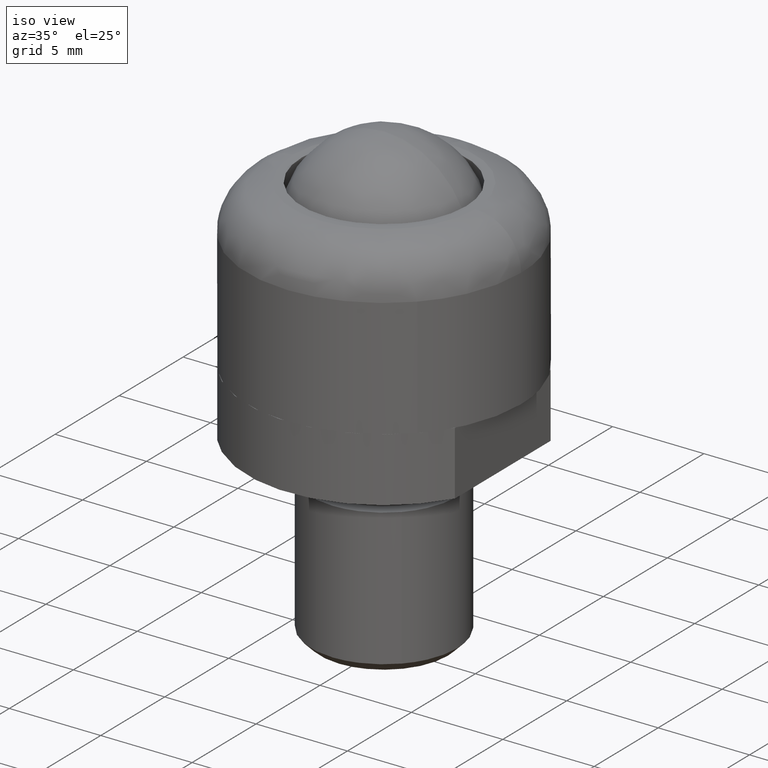
[diagram: clean part render]
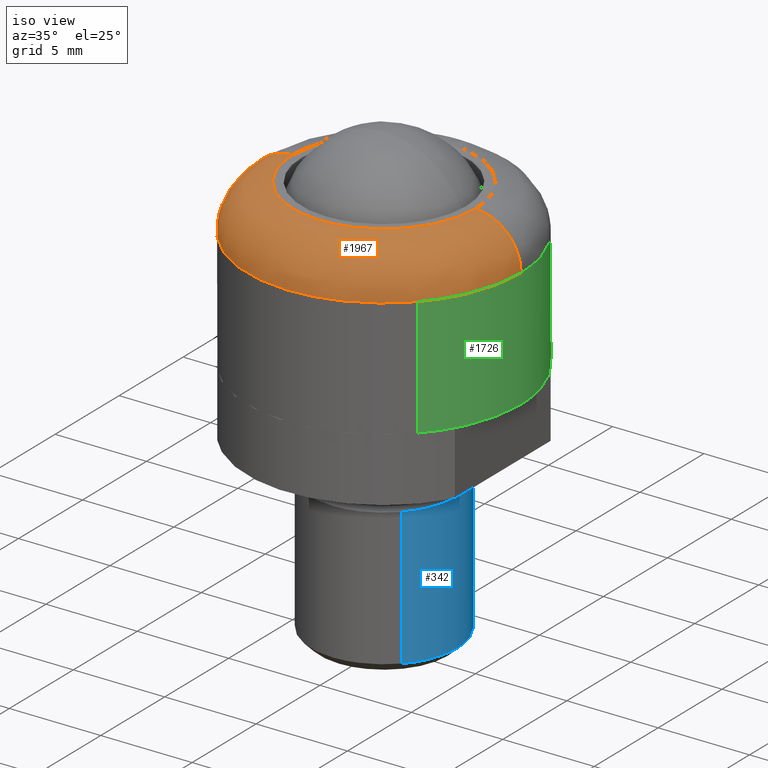
[diagram: same view with three faces highlighted in distinct colors, each labeled with its STEP entity id]
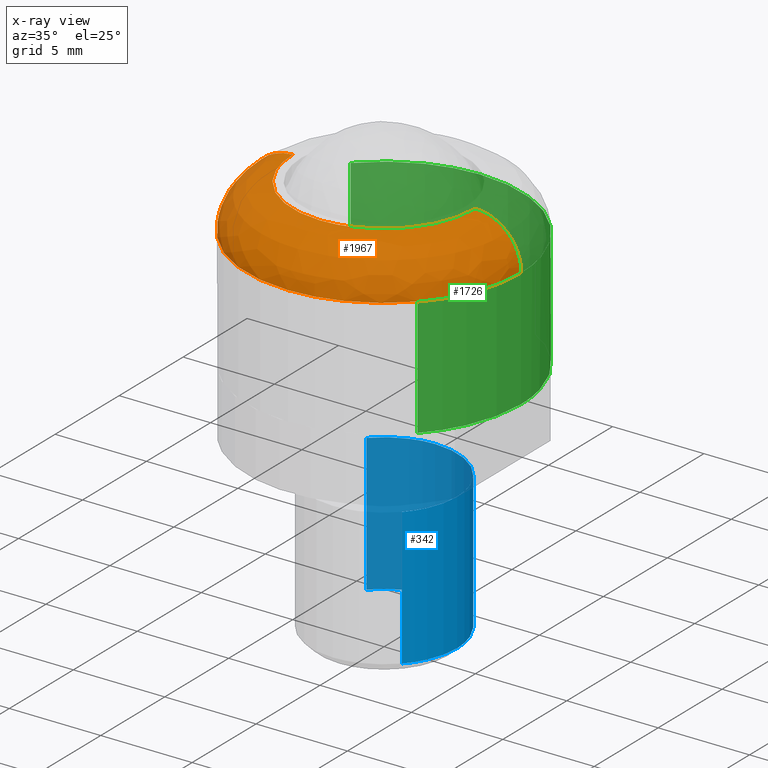
[diagram: x-ray of the same camera — body ghosted, the three highlighted faces saturated]
A machine part, iso view with three faces highlighted in distinct colors.
The next image is the same camera in x-ray (body ghosted, the three faces saturated) — at least one of them is partly hidden behind the body in this view.
Their STEP definitions:

[orange] entity #1967 — the highlighted face is a freeform B-spline surface patch.
#1683=CARTESIAN_POINT('',(7.499999999999998,4.377505E-016,6.500000000022540));
#1684=VERTEX_POINT('',#1683);
#1703=CARTESIAN_POINT('',(5.440307722741466,-5.162659260906372,6.500000000022540));
#1704=VERTEX_POINT('',#1703);
#1705=CARTESIAN_POINT('',(7.499999999999998,4.377505E-016,6.500000000022540));
#1706=CARTESIAN_POINT('',(7.500004978192504,-0.296569295775707,6.500000000022548));
#1707=CARTESIAN_POINT('',(7.461264146130633,-0.949024412818240,6.500000000022538));
#1708=CARTESIAN_POINT('',(7.290171463277423,-1.839566882293058,6.500000000022550));
#1709=CARTESIAN_POINT('',(6.989934156635150,-2.772367460848641,6.500000000022515));
#1710=CARTESIAN_POINT('',(6.644593649050092,-3.513680738812940,6.500000000022582));
#1711=CARTESIAN_POINT('',(6.126048981543740,-4.361999581352154,6.500000000022458));
#1712=CARTESIAN_POINT('',(5.736349160913113,-4.850754676377436,6.500000000022683));
#1713=CARTESIAN_POINT('',(5.440307722741466,-5.162659260906372,6.500000000022540));
#1714=B_SPLINE_CURVE_WITH_KNOTS('',3,(#1705,#1706,#1707,#1708,#1709,#1710,#1711,#1712,#1713),.UNSPECIFIED.,.F.,.U.,(4,1,1,1,1,1,4),(3.949230E-009,0.889710148133248,1.957363372318722,2.713618459239906,3.825751682415431,4.404065830071315,5.694145000191808),.UNSPECIFIED.);
#1715=EDGE_CURVE('',#1684,#1704,#1714,.T.);
#1749=CARTESIAN_POINT('',(-0.000000330494854,-7.499999999999992,6.500000000022540));
#1750=VERTEX_POINT('',#1749);
#1751=CARTESIAN_POINT('',(5.440307722741466,-5.162659260906372,6.500000000022540));
#1752=CARTESIAN_POINT('',(5.102099579559788,-5.519141473230319,6.500000000022549));
#1753=CARTESIAN_POINT('',(4.523898488901426,-6.019325575841868,6.500000000022548));
#1754=CARTESIAN_POINT('',(3.529333267395300,-6.644423933079743,6.500000000022493));
#1755=CARTESIAN_POINT('',(2.558422508324002,-7.083635640485623,6.500000000022610));
#1756=CARTESIAN_POINT('',(1.331481735778617,-7.418320711793597,6.500000000022478));
#1757=CARTESIAN_POINT('',(0.475535602979275,-7.500046336971984,6.500000000022608));
#1758=CARTESIAN_POINT('',(-0.000000330494854,-7.499999999999992,6.500000000022540));
#1759=B_SPLINE_CURVE_WITH_KNOTS('',3,(#1751,#1752,#1753,#1754,#1755,#1756,#1757,#1758),.UNSPECIFIED.,.F.,.U.,(4,1,1,1,1,4),(4.373764E-009,1.474157996961938,2.282568049864745,3.518953328158689,4.660242098789375,6.086846258987342),.UNSPECIFIED.);
#1760=EDGE_CURVE('',#1704,#1750,#1759,.T.);
#1762=CARTESIAN_POINT('',(-7.499999999999998,-8.755010E-016,6.500000000022541));
#1763=VERTEX_POINT('',#1762);
#1764=CARTESIAN_POINT('',(-0.000000330494854,-7.499999999999992,6.500000000022540));
#1765=CARTESIAN_POINT('',(-0.383494193619272,-7.500011642684124,6.500000000022547));
#1766=CARTESIAN_POINT('',(-1.227188403497195,-7.435188433719577,6.500000000022530));
#1767=CARTESIAN_POINT('',(-2.377807851523626,-7.146966119386057,6.500000000022562));
#1768=CARTESIAN_POINT('',(-3.480043860188789,-6.674457347835470,6.500000000022505));
#1769=CARTESIAN_POINT('',(-4.305419654919294,-6.165872903493026,6.500000000022621));
#1770=CARTESIAN_POINT('',(-5.058861356289620,-5.559035651464155,6.500000000022387));
#1771=CARTESIAN_POINT('',(-5.717960313431723,-4.891829050180547,6.500000000022640));
#1772=CARTESIAN_POINT('',(-6.286033742515484,-4.125846070361853,6.500000000022522));
#1773=CARTESIAN_POINT('',(-6.755378181036678,-3.297331941459818,6.500000000022479));
#1774=CARTESIAN_POINT('',(-7.137528045077264,-2.390579753715305,6.500000000022697));
#1775=CARTESIAN_POINT('',(-7.428653707689292,-1.257851769376104,6.500000000022181));
#1776=CARTESIAN_POINT('',(-7.500030586632573,-0.429513941203708,6.500000000023101));
#1777=CARTESIAN_POINT('',(-7.499999999999998,-8.755010E-016,6.500000000022541));
#1778=B_SPLINE_CURVE_WITH_KNOTS('',3,(#1764,#1765,#1766,#1767,#1768,#1769,#1770,#1771,#1772,#1773,#1774,#1775,#1776,#1777),.UNSPECIFIED.,.F.,.U.,(4,1,1,1,1,1,1,1,1,1,1,4),(0.000000015643765,1.150486712175137,2.531070548999963,3.543503985014125,4.740015871154599,5.430311149043261,6.442724989873629,7.547191724671601,8.283508063097402,9.295939865156980,10.492452242905150,11.780990745615460),.UNSPECIFIED.);
#1779=EDGE_CURVE('',#1750,#1763,#1778,.T.);
#1825=CARTESIAN_POINT('',(-5.000000000043314,-5.084947E-016,9.0));
#1826=VERTEX_POINT('',#1825);
#1827=CARTESIAN_POINT('',(-5.000000000043314,-5.084947E-016,9.0));
#1828=CARTESIAN_POINT('',(-5.224992329176110,-6.924742E-016,9.000080637334035));
#1829=CARTESIAN_POINT('',(-5.582875494213345,-9.523436E-016,8.951337225687798));
#1830=CARTESIAN_POINT('',(-6.055138230057533,-1.222869E-015,8.779066954405998));
#1831=CARTESIAN_POINT('',(-6.439172015135716,-1.390911E-015,8.561529512687018));
#1832=CARTESIAN_POINT('',(-6.777271723951792,-1.476503E-015,8.277044831979321));
#1833=CARTESIAN_POINT('',(-7.032968260615376,-1.479138E-015,7.969308538469618));
#1834=CARTESIAN_POINT('',(-7.264137270218628,-1.416569E-015,7.594245561857378));
#1835=CARTESIAN_POINT('',(-7.449528859272108,-1.245753E-015,7.113579769936791));
#1836=CARTESIAN_POINT('',(-7.500049799176263,-1.012717E-015,6.704534012589609));
#1837=CARTESIAN_POINT('',(-7.499999999999998,-8.755010E-016,6.500000000022541));
#1838=B_SPLINE_CURVE_WITH_KNOTS('',3,(#1827,#1828,#1829,#1830,#1831,#1832,#1833,#1834,#1835,#1836,#1837),.UNSPECIFIED.,.F.,.U.,(4,1,1,1,1,1,1,1,4),(0.000000020275698,0.674952275256474,1.073794516320234,1.503313239802686,1.994181803360664,2.393023462445241,2.699820190181744,3.313419622743012,3.927015457151167),.UNSPECIFIED.);
#1839=EDGE_CURVE('',#1826,#1763,#1838,.T.);
#1859=CARTESIAN_POINT('',(5.000000000043314,2.542473E-016,9.0));
#1860=VERTEX_POINT('',#1859);
#1877=CARTESIAN_POINT('',(5.000000000043314,2.542473E-016,9.0));
#1878=CARTESIAN_POINT('',(5.245452101985463,3.546118E-016,9.000116452010001));
#1879=CARTESIAN_POINT('',(5.644215635422647,4.976983E-016,8.940764261256362));
#1880=CARTESIAN_POINT('',(6.138846654543890,6.323503E-016,8.739407950438555));
#1881=CARTESIAN_POINT('',(6.460775317035456,6.964912E-016,8.538286302981923));
#1882=CARTESIAN_POINT('',(6.768005235246996,7.364632E-016,8.283006973426254));
#1883=CARTESIAN_POINT('',(7.038546529384050,7.431644E-016,7.973230818805604));
#1884=CARTESIAN_POINT('',(7.271120062617587,7.044028E-016,7.574159271657974));
#1885=CARTESIAN_POINT('',(7.449944228324046,6.161790E-016,7.093101489234308));
#1886=CARTESIAN_POINT('',(7.500082113211626,5.132321E-016,6.724992394283261));
#1887=CARTESIAN_POINT('',(7.499999999999998,4.377505E-016,6.500000000022540));
#1888=B_SPLINE_CURVE_WITH_KNOTS('',3,(#1877,#1878,#1879,#1880,#1881,#1882,#1883,#1884,#1885,#1886,#1887),.UNSPECIFIED.,.F.,.U.,(4,1,1,1,1,1,1,1,4),(0.000000020275115,0.736315116080057,1.196515260965232,1.595357382436494,1.871479091350164,2.393023462444814,2.822540813046694,3.252063498900667,3.927015457151164),.UNSPECIFIED.);
#1889=EDGE_CURVE('',#1860,#1684,#1888,.T.);
#1897=CARTESIAN_POINT('',(4.826623561338355,0.134936648841677,8.993980876132977));
#1898=CARTESIAN_POINT('',(4.826623561338355,0.067861243050944,8.993980876132975));
#1899=CARTESIAN_POINT('',(4.826623561338356,-4.826623561338353,8.993980876132977));
#1900=CARTESIAN_POINT('',(5.910714E-016,-4.826623561338355,8.993980876132977));
#1901=CARTESIAN_POINT('',(-4.826623561338353,-4.826623561338356,8.993980876132977));
#1902=CARTESIAN_POINT('',(-4.826623561338354,0.067861243050944,8.993980876132975));
#1903=CARTESIAN_POINT('',(-4.826623561338354,0.134936648841678,8.993980876132975));
#1904=CARTESIAN_POINT('',(7.694348179799923,0.215108873772489,9.193339213708565));
#1905=CARTESIAN_POINT('',(7.694348179799924,0.108180806999418,9.193339213708567));
#1906=CARTESIAN_POINT('',(7.694348179799923,-7.694348179799921,9.193339213708565));
#1907=CARTESIAN_POINT('',(9.422548E-016,-7.694348179799923,9.193339213708565));
#1908=CARTESIAN_POINT('',(-7.694348179799921,-7.694348179799923,9.193339213708565));
#1909=CARTESIAN_POINT('',(-7.694348179799922,0.108180806999419,9.193339213708565));
#1910=CARTESIAN_POINT('',(-7.694348179799923,0.215108873772492,9.193339213708565));
#1911=CARTESIAN_POINT('',(7.493915763898146,0.209505437296178,6.325689465090855));
#1912=CARTESIAN_POINT('',(7.493915763898145,0.105362772255680,6.325689465090854));
#1913=CARTESIAN_POINT('',(7.493915763898145,-7.493915763898144,6.325689465090854));
#1914=CARTESIAN_POINT('',(9.177097E-016,-7.493915763898146,6.325689465090854));
#1915=CARTESIAN_POINT('',(-7.493915763898144,-7.493915763898147,6.325689465090854));
#1916=CARTESIAN_POINT('',(-7.493915763898146,0.105362772255680,6.325689465090854));
#1917=CARTESIAN_POINT('',(-7.493915763898146,0.209505437296181,6.325689465090854));
#1925=(BOUNDED_SURFACE()B_SPLINE_SURFACE(2,2,((#1897,#1904,#1911),(#1898,#1905,#1912),(#1899,#1906,#1913),(#1900,#1907,#1914),(#1901,#1908,#1915),(#1902,#1909,#1916),(#1903,#1910,#1917)),.UNSPECIFIED.,.F.,.F.,.U.)B_SPLINE_SURFACE_WITH_KNOTS((3,1,2,1,3),(3,3),(0.0,0.248326523575046,12.664652702327629,25.080978881080199,25.329305404655258),(0.0,4.556817942492553),.UNSPECIFIED.)GEOMETRIC_REPRESENTATION_ITEM()RATIONAL_B_SPLINE_SURFACE(((0.926697838400259,0.606435486919035,0.921564728292852),(0.921332230155912,0.602924207283492,0.916228840909793),(0.647686209694202,0.423848945870745,0.644098584373797),(0.915966621911565,0.599412927647948,0.910892953526734),(0.647686209694202,0.423848945870745,0.644098584373797),(0.921332230155912,0.602924207283492,0.916228840909793),(0.926697838400259,0.606435486919036,0.921564728292852)))REPRESENTATION_ITEM('')SURFACE());
#1926=ORIENTED_EDGE('',*,*,#1839,.T.);
#1927=ORIENTED_EDGE('',*,*,#1779,.F.);
#1928=ORIENTED_EDGE('',*,*,#1760,.F.);
#1929=ORIENTED_EDGE('',*,*,#1715,.F.);
#1930=ORIENTED_EDGE('',*,*,#1889,.F.);
#1931=CARTESIAN_POINT('',(-0.000000266971305,-4.999999999999993,9.0));
#1932=VERTEX_POINT('',#1931);
#1933=CARTESIAN_POINT('',(5.000000000043314,2.542473E-016,9.0));
#1934=CARTESIAN_POINT('',(5.000041579712678,-0.317025052964032,8.999999999999995));
#1935=CARTESIAN_POINT('',(4.955098385609738,-0.787428007263979,9.000000000000004));
#1936=CARTESIAN_POINT('',(4.789774363177290,-1.474190587111702,9.000000000000011));
#1937=CARTESIAN_POINT('',(4.563072176982196,-2.089914099054602,9.000000000000041));
#1938=CARTESIAN_POINT('',(4.221729305879987,-2.710056865325194,8.999999999999941));
#1939=CARTESIAN_POINT('',(3.735605243876211,-3.357245694064441,8.999999999999966));
#1940=CARTESIAN_POINT('',(3.149207689084382,-3.918974807236570,9.000000000000068));
#1941=CARTESIAN_POINT('',(2.421170862981664,-4.398976511957731,8.999999999999941));
#1942=CARTESIAN_POINT('',(1.794492247008189,-4.681356817983810,9.000000000000229));
#1943=CARTESIAN_POINT('',(0.991925724753935,-4.927530523026948,8.999999999999801));
#1944=CARTESIAN_POINT('',(0.419302006838902,-5.000124467389311,9.000000000000107));
#1945=CARTESIAN_POINT('',(-0.000000266971305,-4.999999999999993,9.0));
#1946=B_SPLINE_CURVE_WITH_KNOTS('',3,(#1933,#1934,#1935,#1936,#1937,#1938,#1939,#1940,#1941,#1942,#1943,#1944,#1945),.UNSPECIFIED.,.F.,.U.,(4,1,1,1,1,1,1,1,1,1,4),(0.000000019291996,0.951064410342130,1.411264140829679,2.116897929513068,2.914569780130336,3.528164280101916,4.540588463395548,5.338257872022725,6.135934325775751,6.596132728331905,7.853994105105901),.UNSPECIFIED.);
#1947=EDGE_CURVE('',#1860,#1932,#1946,.T.);
#1948=ORIENTED_EDGE('',*,*,#1947,.T.);
#1949=CARTESIAN_POINT('',(-0.000000266971305,-4.999999999999993,9.0));
#1950=CARTESIAN_POINT('',(-0.398847547025688,-5.000101955275626,8.999999999999991));
#1951=CARTESIAN_POINT('',(-0.971480213585778,-4.931092852496796,9.000000000000025));
#1952=CARTESIAN_POINT('',(-1.815026792356673,-4.678026698619735,8.999999999999972));
#1953=CARTESIAN_POINT('',(-2.550585220114177,-4.335681293545455,9.000000000000144));
#1954=CARTESIAN_POINT('',(-3.233486635202666,-3.842056770197375,8.999999999999952));
#1955=CARTESIAN_POINT('',(-3.755094058593636,-3.320399357424411,8.999999999999924));
#1956=CARTESIAN_POINT('',(-4.114395811200668,-2.859999629283382,8.999999999999931));
#1957=CARTESIAN_POINT('',(-4.408381226705074,-2.379587939717102,9.000000000000105));
#1958=CARTESIAN_POINT('',(-4.688671317558803,-1.787033867694606,8.999999999999952));
#1959=CARTESIAN_POINT('',(-4.932515580142626,-0.991953196744480,9.000000000000014));
#1960=CARTESIAN_POINT('',(-5.000057053994409,-0.347705331337722,8.999999999999952));
#1961=CARTESIAN_POINT('',(-5.000000000043314,-5.084947E-016,9.0));
#1962=B_SPLINE_CURVE_WITH_KNOTS('',3,(#1949,#1950,#1951,#1952,#1953,#1954,#1955,#1956,#1957,#1958,#1959,#1960,#1961),.UNSPECIFIED.,.F.,.U.,(4,1,1,1,1,1,1,1,1,1,4),(0.000000019314181,1.196505536071609,1.718061021972999,2.638454910744432,3.620204416498010,4.233791149064750,4.847386722705608,5.368940662403571,5.921175208852359,6.810891085786240,7.853993804166557),.UNSPECIFIED.);
#1963=EDGE_CURVE('',#1932,#1826,#1962,.T.);
#1964=ORIENTED_EDGE('',*,*,#1963,.T.);
#1965=EDGE_LOOP('',(#1926,#1927,#1928,#1929,#1930,#1948,#1964));
#1966=FACE_OUTER_BOUND('',#1965,.T.);
#1967=ADVANCED_FACE('',(#1966),#1925,.T.);

[blue] entity #342 — the highlighted face is a freeform B-spline surface patch.
#140=CARTESIAN_POINT('',(2.702360905895586,2.949109429561174,-12.999999962781549));
#141=VERTEX_POINT('',#140);
#147=CARTESIAN_POINT('',(4.0,0.0,-12.999999999999860));
#148=VERTEX_POINT('',#147);
#149=CARTESIAN_POINT('',(2.702360905895586,2.949109429561174,-12.999999962781549));
#150=CARTESIAN_POINT('',(2.887023993022948,2.779937766610589,-12.999999964916530));
#151=CARTESIAN_POINT('',(3.172035105336778,2.464644462735711,-12.999999968895580));
#152=CARTESIAN_POINT('',(3.464462412668522,2.014798165396831,-12.999999974572731));
#153=CARTESIAN_POINT('',(3.718721530333733,1.513799014013364,-12.999999980895460));
#154=CARTESIAN_POINT('',(3.936967702406595,0.863557567052297,-12.999999989101489));
#155=CARTESIAN_POINT('',(4.000049423881165,0.293619034072345,-12.999999996294390));
#156=CARTESIAN_POINT('',(4.0,0.0,-12.999999999999860));
#157=B_SPLINE_CURVE_WITH_KNOTS('',3,(#149,#150,#151,#152,#153,#154,#155,#156),.UNSPECIFIED.,.F.,.U.,(4,1,1,1,1,4),(5.929453E-009,0.751310531476355,1.269460208842413,1.606254067652039,2.435283786637226,3.316131421160547),.UNSPECIFIED.);
#158=EDGE_CURVE('',#141,#148,#157,.T.);
#160=CARTESIAN_POINT('',(2.901497424377466,-2.753418257254559,-12.999999999999860));
#161=VERTEX_POINT('',#160);
#162=CARTESIAN_POINT('',(4.0,0.0,-12.999999999999860));
#163=CARTESIAN_POINT('',(4.000021593978187,-0.229348625047346,-12.999999999999860));
#164=CARTESIAN_POINT('',(3.965891133637014,-0.624767858892875,-12.999999999999879));
#165=CARTESIAN_POINT('',(3.833445170229573,-1.179699498566134,-12.999999999999860));
#166=CARTESIAN_POINT('',(3.637077466204650,-1.698561861951282,-12.999999999999879));
#167=CARTESIAN_POINT('',(3.336519293514331,-2.239516411124261,-12.999999999999879));
#168=CARTESIAN_POINT('',(3.059384414003708,-2.587068221887849,-12.999999999999851));
#169=CARTESIAN_POINT('',(2.901497424377466,-2.753418257254559,-12.999999999999860));
#170=B_SPLINE_CURVE_WITH_KNOTS('',3,(#162,#163,#164,#165,#166,#167,#168,#169),.UNSPECIFIED.,.F.,.U.,(4,1,1,1,1,4),(4.603046E-009,0.688042406418738,1.186282735303504,1.708241255789303,2.348834928055208,3.036877329870923),.UNSPECIFIED.);
#171=EDGE_CURVE('',#148,#161,#170,.T.);
#218=CARTESIAN_POINT('',(-2.901497424377443,2.753418257254539,-12.999999999999860));
#219=VERTEX_POINT('',#218);
#231=CARTESIAN_POINT('',(0.000000298883830,3.999999999999989,-12.999999999999860));
#232=VERTEX_POINT('',#231);
#233=CARTESIAN_POINT('',(-2.901497424377443,2.753418257254539,-12.999999999999860));
#234=CARTESIAN_POINT('',(-2.750206587640404,2.912868527830649,-12.999999999999851));
#235=CARTESIAN_POINT('',(-2.427571364465209,3.201078697174429,-12.999999999999901));
#236=CARTESIAN_POINT('',(-1.977038722932054,3.488251565986723,-12.999999999999810));
#237=CARTESIAN_POINT('',(-1.520002022197613,3.709111774006864,-12.999999999999940));
#238=CARTESIAN_POINT('',(-0.904516983966002,3.926331082798158,-12.999999999999750));
#239=CARTESIAN_POINT('',(-0.355080002970088,4.000121724714623,-12.999999999999970));
#240=CARTESIAN_POINT('',(0.000000298883830,3.999999999999989,-12.999999999999860));
#241=B_SPLINE_CURVE_WITH_KNOTS('',3,(#233,#234,#235,#236,#237,#238,#239,#240),.UNSPECIFIED.,.F.,.U.,(4,1,1,1,1,4),(5.673908E-009,0.659407504231194,1.293456705138537,1.597803688364206,2.181119599837517,3.246318106935278),.UNSPECIFIED.);
#242=EDGE_CURVE('',#219,#232,#241,.T.);
#244=CARTESIAN_POINT('',(0.000000298883830,3.999999999999989,-12.999999999999860));
#245=CARTESIAN_POINT('',(0.200895245041406,4.000009741065902,-12.999999997233040));
#246=CARTESIAN_POINT('',(0.618135346055895,3.968503406404327,-12.999999991486581));
#247=CARTESIAN_POINT('',(1.266997148080641,3.815367410500787,-12.999999982550140));
#248=CARTESIAN_POINT('',(1.994290166279026,3.503029766517091,-12.999999972533431));
#249=CARTESIAN_POINT('',(2.463142836505641,3.168411580844910,-12.999999966076210));
#250=CARTESIAN_POINT('',(2.702360905895586,2.949109429561174,-12.999999962781549));
#251=B_SPLINE_CURVE_WITH_KNOTS('',3,(#244,#245,#246,#247,#248,#249,#250),.UNSPECIFIED.,.F.,.U.,(4,1,1,1,4),(1.254538E-009,0.602687290401516,1.251735501374134,1.993504139517309,2.967076076935547),.UNSPECIFIED.);
#252=EDGE_CURVE('',#232,#141,#251,.T.);
#262=CARTESIAN_POINT('',(-2.901497484049150,2.753418302775015,-5.312499999999901));
#263=CARTESIAN_POINT('',(-0.148079181274134,5.654915786824165,-5.312499999999901));
#264=CARTESIAN_POINT('',(2.753418302775015,2.901497484049150,-5.312499999999901));
#265=CARTESIAN_POINT('',(5.654915786824165,0.148079181274134,-5.312499999999901));
#266=CARTESIAN_POINT('',(2.901497484049150,-2.753418302775015,-5.312499999999901));
#267=CARTESIAN_POINT('',(-2.901497484049150,2.753418302775015,-13.192187499999861));
#268=CARTESIAN_POINT('',(-0.148079181274134,5.654915786824165,-13.192187499999861));
#269=CARTESIAN_POINT('',(2.753418302775015,2.901497484049150,-13.192187499999861));
#270=CARTESIAN_POINT('',(5.654915786824165,0.148079181274134,-13.192187499999861));
#271=CARTESIAN_POINT('',(2.901497484049150,-2.753418302775015,-13.192187499999861));
#279=(BOUNDED_SURFACE()B_SPLINE_SURFACE(2,1,((#262,#267),(#263,#268),(#264,#269),(#265,#270),(#266,#271)),.UNSPECIFIED.,.F.,.F.,.U.)B_SPLINE_SURFACE_WITH_KNOTS((3,2,3),(2,2),(0.0,6.627416997969519,13.254833995939039),(0.0,7.879687499999960),.UNSPECIFIED.)GEOMETRIC_REPRESENTATION_ITEM()RATIONAL_B_SPLINE_SURFACE(((1.0,1.0),(0.707106781186548,0.707106781186548),(1.0,1.0),(0.707106781186548,0.707106781186548),(1.0,1.0)))REPRESENTATION_ITEM('')SURFACE());
#280=CARTESIAN_POINT('',(-2.901497424312712,2.753418257322751,-5.499999999999949));
#281=VERTEX_POINT('',#280);
#282=CARTESIAN_POINT('',(0.000000298883830,3.999999999999989,-5.499999999999900));
#283=VERTEX_POINT('',#282);
#284=CARTESIAN_POINT('',(-2.901497424312712,2.753418257322751,-5.499999999999949));
#285=CARTESIAN_POINT('',(-2.692042282817991,2.974227429440102,-5.499999999999928));
#286=CARTESIAN_POINT('',(-2.326746761366625,3.280190441546983,-5.499999999999956));
#287=CARTESIAN_POINT('',(-1.760660893968436,3.604226249855561,-5.499999999999912));
#288=CARTESIAN_POINT('',(-1.337481163793046,3.778139443193969,-5.499999999999925));
#289=CARTESIAN_POINT('',(-0.752372578608980,3.947775834812802,-5.499999999999932));
#290=CARTESIAN_POINT('',(-0.321259808806420,4.000084514765439,-5.499999999999891));
#291=CARTESIAN_POINT('',(0.000000298883830,3.999999999999989,-5.499999999999900));
#292=B_SPLINE_CURVE_WITH_KNOTS('',3,(#284,#285,#286,#287,#288,#289,#290,#291),.UNSPECIFIED.,.F.,.U.,(4,1,1,1,1,4),(5.674907E-009,0.913027680958912,1.420269032715031,1.952861407411021,2.282566554795959,3.246318106841233),.UNSPECIFIED.);
#293=EDGE_CURVE('',#281,#283,#292,.T.);
#294=ORIENTED_EDGE('',*,*,#293,.T.);
#295=CARTESIAN_POINT('',(4.0,0.0,-5.499999999999900));
#296=VERTEX_POINT('',#295);
#297=CARTESIAN_POINT('',(0.000000298883830,3.999999999999989,-5.499999999999900));
#298=CARTESIAN_POINT('',(0.253617496304542,4.000025669690686,-5.499999999999906));
#299=CARTESIAN_POINT('',(0.769029144851039,3.950829381209890,-5.499999999999909));
#300=CARTESIAN_POINT('',(1.454695166348925,3.747425338526501,-5.499999999999876));
#301=CARTESIAN_POINT('',(2.108856487774177,3.423155772556104,-5.499999999999949));
#302=CARTESIAN_POINT('',(2.592111828788181,3.067061335882910,-5.499999999999893));
#303=CARTESIAN_POINT('',(3.014906574129836,2.644219374237199,-5.499999999999863));
#304=CARTESIAN_POINT('',(3.322778849330700,2.249734494038107,-5.499999999999972));
#305=CARTESIAN_POINT('',(3.581469842584006,1.802697412224366,-5.499999999999937));
#306=CARTESIAN_POINT('',(3.810712041791886,1.268004520565301,-5.499999999999877));
#307=CARTESIAN_POINT('',(3.964178759081424,0.670861461263990,-5.499999999999963));
#308=CARTESIAN_POINT('',(4.000007101305900,0.204527303122591,-5.499999999999854));
#309=CARTESIAN_POINT('',(4.0,0.0,-5.499999999999900));
#310=B_SPLINE_CURVE_WITH_KNOTS('',3,(#297,#298,#299,#300,#301,#302,#303,#304,#305,#306,#307,#308,#309),.UNSPECIFIED.,.F.,.U.,(4,1,1,1,1,1,1,1,1,1,4),(0.000000020019295,0.760849594886410,1.546255071134481,2.135306115319639,2.945258018465191,3.337937279705436,3.926993200300530,4.442413600494239,4.884203644449523,5.669609726160413,6.283194995218321),.UNSPECIFIED.);
#311=EDGE_CURVE('',#283,#296,#310,.T.);
#312=ORIENTED_EDGE('',*,*,#311,.T.);
#313=CARTESIAN_POINT('',(2.901497424312734,-2.753418257322772,-5.499999999999950));
#314=VERTEX_POINT('',#313);
#315=CARTESIAN_POINT('',(4.0,0.0,-5.499999999999900));
#316=CARTESIAN_POINT('',(4.000018653169173,-0.229348230995818,-5.499999999999897));
#317=CARTESIAN_POINT('',(3.965893368911039,-0.624767903599020,-5.499999999999924));
#318=CARTESIAN_POINT('',(3.822417240363636,-1.225948493815593,-5.499999999999912));
#319=CARTESIAN_POINT('',(3.622448467478989,-1.727163017602790,-5.499999999999942));
#320=CARTESIAN_POINT('',(3.315988669462681,-2.263649648905021,-5.499999999999909));
#321=CARTESIAN_POINT('',(3.070276408767186,-2.575597890310852,-5.499999999999973));
#322=CARTESIAN_POINT('',(2.901497424312734,-2.753418257322772,-5.499999999999950));
#323=B_SPLINE_CURVE_WITH_KNOTS('',3,(#315,#316,#317,#318,#319,#320,#321,#322),.UNSPECIFIED.,.F.,.U.,(4,1,1,1,1,4),(4.603082E-009,0.688042406440105,1.186282735340304,1.850594599230796,2.301383621379532,3.036877329964961),.UNSPECIFIED.);
#324=EDGE_CURVE('',#296,#314,#323,.T.);
#325=ORIENTED_EDGE('',*,*,#324,.T.);
#326=CARTESIAN_POINT('',(2.901497424312734,-2.753418257322772,-5.499999999999950));
#327=CARTESIAN_POINT('',(2.901497424377466,-2.753418257254559,-12.999999999999860));
#328=QUASI_UNIFORM_CURVE('',1,(#326,#327),.UNSPECIFIED.,.F.,.U.);
#329=EDGE_CURVE('',#314,#161,#328,.T.);
#330=ORIENTED_EDGE('',*,*,#329,.T.);
#331=ORIENTED_EDGE('',*,*,#171,.F.);
#332=ORIENTED_EDGE('',*,*,#158,.F.);
#333=ORIENTED_EDGE('',*,*,#252,.F.);
#334=ORIENTED_EDGE('',*,*,#242,.F.);
#335=CARTESIAN_POINT('',(-2.901497424312712,2.753418257322751,-5.499999999999949));
#336=CARTESIAN_POINT('',(-2.901497424377443,2.753418257254539,-12.999999999999860));
#337=QUASI_UNIFORM_CURVE('',1,(#335,#336),.UNSPECIFIED.,.F.,.U.);
#338=EDGE_CURVE('',#281,#219,#337,.T.);
#339=ORIENTED_EDGE('',*,*,#338,.F.);
#340=EDGE_LOOP('',(#294,#312,#325,#330,#331,#332,#333,#334,#339));
#341=FACE_OUTER_BOUND('',#340,.T.);
#342=ADVANCED_FACE('',(#341),#279,.T.);

[green] entity #1726 — the highlighted face is a freeform B-spline surface patch.
#1124=CARTESIAN_POINT('',(-5.440307722741464,5.162659260906362,3.260447E-013));
#1125=VERTEX_POINT('',#1124);
#1137=CARTESIAN_POINT('',(0.000000330494889,7.499999999999993,0.0));
#1138=VERTEX_POINT('',#1137);
#1139=CARTESIAN_POINT('',(-5.440307722741464,5.162659260906362,3.260447E-013));
#1140=CARTESIAN_POINT('',(-5.222090561764770,5.392626361892578,3.129667E-013));
#1141=CARTESIAN_POINT('',(-4.756433811510715,5.824825442814862,2.850593E-013));
#1142=CARTESIAN_POINT('',(-4.007410296107785,6.361113732606425,2.401693E-013));
#1143=CARTESIAN_POINT('',(-3.255371648264560,6.772807285650643,1.950987E-013));
#1144=CARTESIAN_POINT('',(-2.317090248235412,7.161976463842699,1.388663E-013));
#1145=CARTESIAN_POINT('',(-1.236393473926664,7.434767812609511,7.409869E-014));
#1146=CARTESIAN_POINT('',(-0.380425968350426,7.500012791603552,2.279944E-014));
#1147=CARTESIAN_POINT('',(0.000000330494889,7.499999999999993,0.0));
#1148=B_SPLINE_CURVE_WITH_KNOTS('',3,(#1139,#1140,#1141,#1142,#1143,#1144,#1145,#1146,#1147),.UNSPECIFIED.,.F.,.U.,(4,1,1,1,1,1,4),(4.373732E-009,0.951069366999060,1.902139811745134,2.758107686478077,3.518953328158676,4.945562716213861,6.086846258987378),.UNSPECIFIED.);
#1149=EDGE_CURVE('',#1125,#1138,#1148,.T.);
#1151=CARTESIAN_POINT('',(7.500000000000000,0.0,0.0));
#1152=VERTEX_POINT('',#1151);
#1153=CARTESIAN_POINT('',(0.000000330494889,7.499999999999993,0.0));
#1154=CARTESIAN_POINT('',(0.383496709175140,7.500023622442923,0.0));
#1155=CARTESIAN_POINT('',(1.119798394740377,7.443400189007258,0.0));
#1156=CARTESIAN_POINT('',(2.274347051570003,7.180447759328336,0.0));
#1157=CARTESIAN_POINT('',(3.302645239692076,6.765563218895495,0.0));
#1158=CARTESIAN_POINT('',(4.202292416290751,6.233753146761571,0.0));
#1159=CARTESIAN_POINT('',(5.056345892618646,5.579881452668780,0.0));
#1160=CARTESIAN_POINT('',(5.770517176362161,4.834340244074437,0.0));
#1161=CARTESIAN_POINT('',(6.401203447448755,3.944578211501772,0.0));
#1162=CARTESIAN_POINT('',(6.897006185018848,3.023879723870819,0.0));
#1163=CARTESIAN_POINT('',(7.238558996098638,2.050499457187854,0.0));
#1164=CARTESIAN_POINT('',(7.451647389917656,1.012417028787385,0.0));
#1165=CARTESIAN_POINT('',(7.500023757447852,0.383494025221179,0.0));
#1166=CARTESIAN_POINT('',(7.500000000000000,0.0,0.0));
#1167=B_SPLINE_CURVE_WITH_KNOTS('',3,(#1153,#1154,#1155,#1156,#1157,#1158,#1159,#1160,#1161,#1162,#1163,#1164,#1165,#1166),.UNSPECIFIED.,.F.,.U.,(4,1,1,1,1,1,1,1,1,1,1,4),(0.000000015615436,1.150486712149688,2.208932504260760,3.543503984994633,4.463891996932343,5.338262692139366,6.764865018881711,7.547191724661704,8.605645213579354,9.894191961173997,10.630511099233260,11.780990745615551),.UNSPECIFIED.);
#1168=EDGE_CURVE('',#1138,#1152,#1167,.T.);
#1170=CARTESIAN_POINT('',(5.440307722741471,-5.162659260906369,3.268080E-013));
#1171=VERTEX_POINT('',#1170);
#1172=CARTESIAN_POINT('',(7.500000000000000,0.0,0.0));
#1173=CARTESIAN_POINT('',(7.500122419557545,-0.563496032813298,3.567058E-014));
#1174=CARTESIAN_POINT('',(7.407634825102002,-1.379008142941116,8.729434E-014));
#1175=CARTESIAN_POINT('',(7.100312988171392,-2.464754954329973,1.560246E-013));
#1176=CARTESIAN_POINT('',(6.807656769025325,-3.179752075338632,2.012855E-013));
#1177=CARTESIAN_POINT('',(6.295597698392805,-4.134524845700771,2.617248E-013));
#1178=CARTESIAN_POINT('',(5.828278105235961,-4.753994726167655,3.009386E-013));
#1179=CARTESIAN_POINT('',(5.440307722741471,-5.162659260906369,3.268080E-013));
#1180=B_SPLINE_CURVE_WITH_KNOTS('',3,(#1172,#1173,#1174,#1175,#1176,#1177,#1178,#1179),.UNSPECIFIED.,.F.,.U.,(4,1,1,1,1,4),(3.949342E-009,1.690450371965243,2.446707136006002,3.380894656783160,4.003694742534659,5.694145000191803),.UNSPECIFIED.);
#1181=EDGE_CURVE('',#1152,#1171,#1180,.T.);
#1644=CARTESIAN_POINT('',(-5.440307782592156,5.162659317703152,6.662500000023105));
#1645=CARTESIAN_POINT('',(-0.277648464889004,10.602967100295309,6.662500000023105));
#1646=CARTESIAN_POINT('',(5.162659317703152,5.440307782592156,6.662500000023105));
#1647=CARTESIAN_POINT('',(10.602967100295309,0.277648464889004,6.662500000023105));
#1648=CARTESIAN_POINT('',(5.440307782592156,-5.162659317703152,6.662500000023105));
#1649=CARTESIAN_POINT('',(-5.440307782592156,5.162659317703152,-0.166562500000578));
#1650=CARTESIAN_POINT('',(-0.277648464889004,10.602967100295309,-0.166562500000578));
#1651=CARTESIAN_POINT('',(5.162659317703152,5.440307782592156,-0.166562500000578));
#1652=CARTESIAN_POINT('',(10.602967100295309,0.277648464889004,-0.166562500000578));
#1653=CARTESIAN_POINT('',(5.440307782592156,-5.162659317703152,-0.166562500000578));
#1661=(BOUNDED_SURFACE()B_SPLINE_SURFACE(2,1,((#1644,#1649),(#1645,#1650),(#1646,#1651),(#1647,#1652),(#1648,#1653)),.UNSPECIFIED.,.F.,.F.,.U.)B_SPLINE_SURFACE_WITH_KNOTS((3,2,3),(2,2),(0.0,12.426406871192849,24.852813742385699),(0.0,6.829062500023683),.UNSPECIFIED.)GEOMETRIC_REPRESENTATION_ITEM()RATIONAL_B_SPLINE_SURFACE(((1.0,1.0),(0.707106781186548,0.707106781186548),(1.0,1.0),(0.707106781186548,0.707106781186548),(1.0,1.0)))REPRESENTATION_ITEM('')SURFACE());
#1662=ORIENTED_EDGE('',*,*,#1149,.F.);
#1663=CARTESIAN_POINT('',(-5.440307722741460,5.162659260906365,6.500000000022540));
#1664=VERTEX_POINT('',#1663);
#1665=CARTESIAN_POINT('',(-5.440307722741460,5.162659260906365,6.500000000022540));
#1666=CARTESIAN_POINT('',(-5.440307722741464,5.162659260906362,3.260447E-013));
#1667=QUASI_UNIFORM_CURVE('',1,(#1665,#1666),.UNSPECIFIED.,.F.,.U.);
#1668=EDGE_CURVE('',#1664,#1125,#1667,.T.);
#1669=ORIENTED_EDGE('',*,*,#1668,.F.);
#1670=CARTESIAN_POINT('',(0.000000330494891,7.499999999999994,6.500000000022540));
#1671=VERTEX_POINT('',#1670);
#1672=CARTESIAN_POINT('',(-5.440307722741460,5.162659260906365,6.500000000022540));
#1673=CARTESIAN_POINT('',(-5.102098629813587,5.519139741139223,6.500000000022533));
#1674=CARTESIAN_POINT('',(-4.403448850131401,6.123550194332288,6.500000000022561));
#1675=CARTESIAN_POINT('',(-3.304947841668540,6.766341252236672,6.500000000022526));
#1676=CARTESIAN_POINT('',(-2.328739788299914,7.149533458199430,6.500000000022563));
#1677=CARTESIAN_POINT('',(-1.252215985891944,7.424943596995743,6.500000000022541));
#1678=CARTESIAN_POINT('',(-0.491390976085444,7.500062434035914,6.500000000022558));
#1679=CARTESIAN_POINT('',(0.000000330494891,7.499999999999994,6.500000000022540));
#1680=B_SPLINE_CURVE_WITH_KNOTS('',3,(#1672,#1673,#1674,#1675,#1676,#1677,#1678,#1679),.UNSPECIFIED.,.F.,.U.,(4,1,1,1,1,4),(4.373165E-009,1.474157996961353,2.758107686477699,3.804278504210336,4.612688308663811,6.086846258987375),.UNSPECIFIED.);
#1681=EDGE_CURVE('',#1664,#1671,#1680,.T.);
#1682=ORIENTED_EDGE('',*,*,#1681,.T.);
#1683=CARTESIAN_POINT('',(7.499999999999998,4.377505E-016,6.500000000022540));
#1684=VERTEX_POINT('',#1683);
#1685=CARTESIAN_POINT('',(0.000000330494891,7.499999999999994,6.500000000022540));
#1686=CARTESIAN_POINT('',(0.383497193046451,7.500026400970749,6.500000000022529));
#1687=CARTESIAN_POINT('',(1.012418787137060,7.451647789277350,6.500000000022558));
#1688=CARTESIAN_POINT('',(1.900044505212940,7.269414662908507,6.500000000022535));
#1689=CARTESIAN_POINT('',(2.793455452394216,6.986419776859995,6.500000000022540));
#1690=CARTESIAN_POINT('',(3.696587333154630,6.555864304557964,6.500000000022578));
#1691=CARTESIAN_POINT('',(4.680553418115937,5.898411715718012,6.500000000022546));
#1692=CARTESIAN_POINT('',(5.497801598165072,5.148542186877860,6.500000000022544));
#1693=CARTESIAN_POINT('',(6.126955182508717,4.352388178186041,6.500000000022534));
#1694=CARTESIAN_POINT('',(6.606903693115212,3.584092095675072,6.500000000022498));
#1695=CARTESIAN_POINT('',(6.964255658195024,2.834503508551272,6.500000000022596));
#1696=CARTESIAN_POINT('',(7.251169677962756,1.974832289148401,6.500000000022420));
#1697=CARTESIAN_POINT('',(7.448113995514327,1.058437192948597,6.500000000022864));
#1698=CARTESIAN_POINT('',(7.500024554799866,0.383494061646091,6.500000000022240));
#1699=CARTESIAN_POINT('',(7.499999999999998,4.377505E-016,6.500000000022540));
#1700=B_SPLINE_CURVE_WITH_KNOTS('',3,(#1685,#1686,#1687,#1688,#1689,#1690,#1691,#1692,#1693,#1694,#1695,#1696,#1697,#1698,#1699),.UNSPECIFIED.,.F.,.U.,(4,1,1,1,1,1,1,1,1,1,1,1,4),(0.000000015616420,1.150486712150414,1.886794533141963,2.715149385215383,3.957676904104491,4.878074433702315,6.258648621754221,7.271079435172505,7.915351142385081,8.973802105752004,9.756134984843094,10.630511099233280,11.780990745615551),.UNSPECIFIED.);
#1701=EDGE_CURVE('',#1671,#1684,#1700,.T.);
#1702=ORIENTED_EDGE('',*,*,#1701,.T.);
#1703=CARTESIAN_POINT('',(5.440307722741466,-5.162659260906372,6.500000000022540));
#1704=VERTEX_POINT('',#1703);
#1705=CARTESIAN_POINT('',(7.499999999999998,4.377505E-016,6.500000000022540));
#1706=CARTESIAN_POINT('',(7.500004978192504,-0.296569295775707,6.500000000022548));
#1707=CARTESIAN_POINT('',(7.461264146130633,-0.949024412818240,6.500000000022538));
#1708=CARTESIAN_POINT('',(7.290171463277423,-1.839566882293058,6.500000000022550));
#1709=CARTESIAN_POINT('',(6.989934156635150,-2.772367460848641,6.500000000022515));
#1710=CARTESIAN_POINT('',(6.644593649050092,-3.513680738812940,6.500000000022582));
#1711=CARTESIAN_POINT('',(6.126048981543740,-4.361999581352154,6.500000000022458));
#1712=CARTESIAN_POINT('',(5.736349160913113,-4.850754676377436,6.500000000022683));
#1713=CARTESIAN_POINT('',(5.440307722741466,-5.162659260906372,6.500000000022540));
#1714=B_SPLINE_CURVE_WITH_KNOTS('',3,(#1705,#1706,#1707,#1708,#1709,#1710,#1711,#1712,#1713),.UNSPECIFIED.,.F.,.U.,(4,1,1,1,1,1,4),(3.949230E-009,0.889710148133248,1.957363372318722,2.713618459239906,3.825751682415431,4.404065830071315,5.694145000191808),.UNSPECIFIED.);
#1715=EDGE_CURVE('',#1684,#1704,#1714,.T.);
#1716=ORIENTED_EDGE('',*,*,#1715,.T.);
#1717=CARTESIAN_POINT('',(5.440307722741466,-5.162659260906372,6.500000000022540));
#1718=CARTESIAN_POINT('',(5.440307722741471,-5.162659260906369,3.268080E-013));
#1719=QUASI_UNIFORM_CURVE('',1,(#1717,#1718),.UNSPECIFIED.,.F.,.U.);
#1720=EDGE_CURVE('',#1704,#1171,#1719,.T.);
#1721=ORIENTED_EDGE('',*,*,#1720,.T.);
#1722=ORIENTED_EDGE('',*,*,#1181,.F.);
#1723=ORIENTED_EDGE('',*,*,#1168,.F.);
#1724=EDGE_LOOP('',(#1662,#1669,#1682,#1702,#1716,#1721,#1722,#1723));
#1725=FACE_OUTER_BOUND('',#1724,.T.);
#1726=ADVANCED_FACE('',(#1725),#1661,.T.);